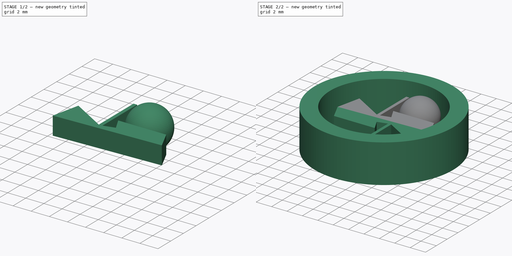
[diagram: build sequence overview — one tinted view per stage of 2, left to right]
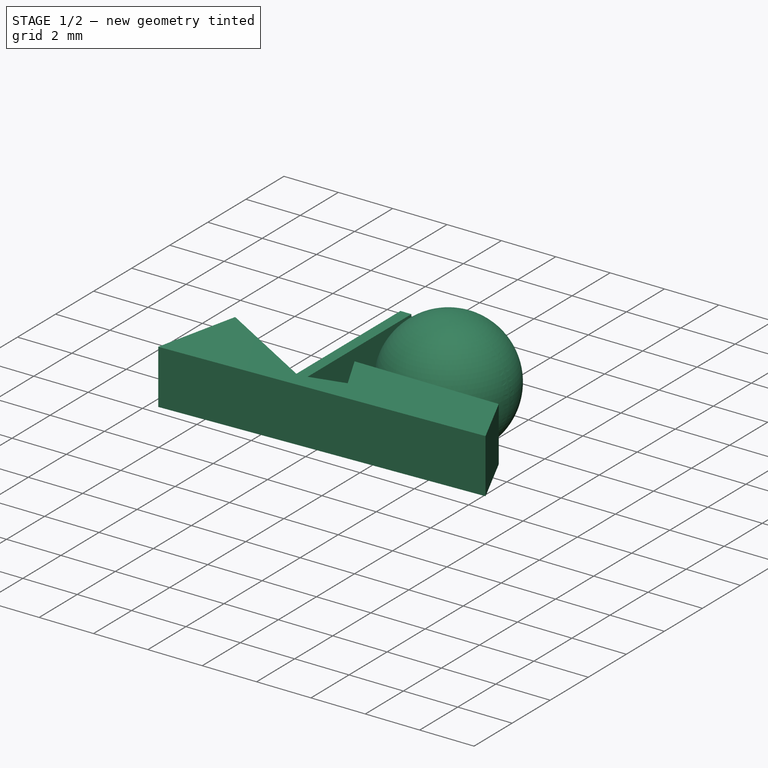
[diagram: stage 1 of 2 — iso view after this stage's code; geometry added in this stage tinted green]
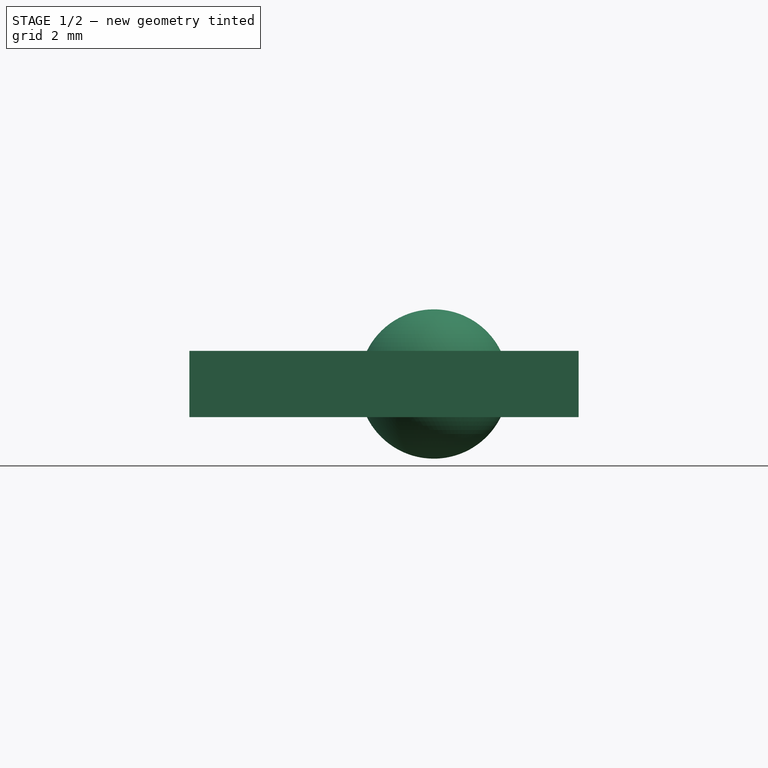
[diagram: stage 1 of 2 — front view after this stage's code; geometry added in this stage tinted green]
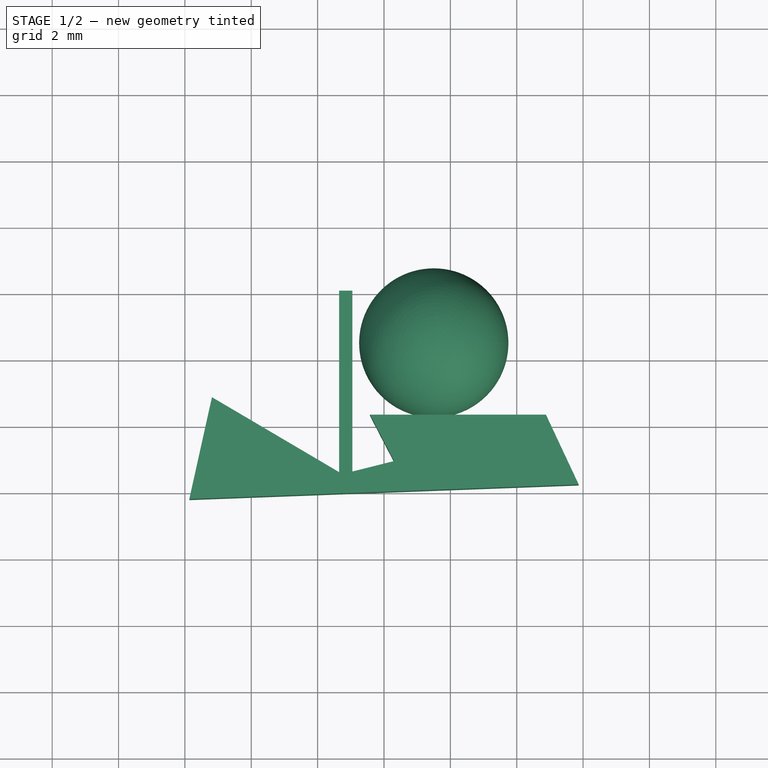
[diagram: stage 1 of 2 — top view after this stage's code; geometry added in this stage tinted green]
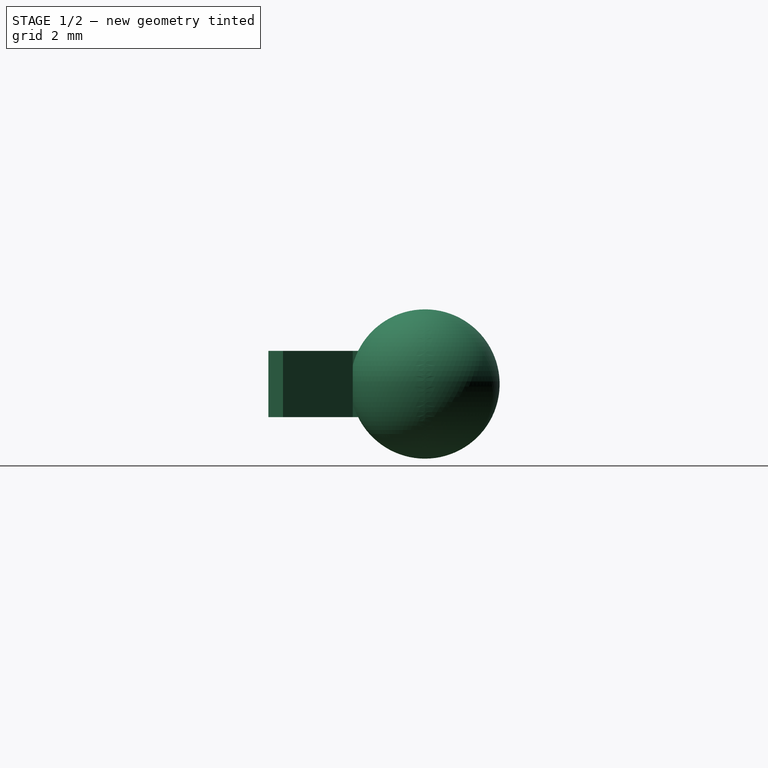
[diagram: stage 1 of 2 — right view after this stage's code; geometry added in this stage tinted green]
FCSTD DOCUMENT  (FreeCAD 0.16RUnknown)
Label: FreewheelBearing
License: CreativeCommons Attribution-NonCommercial
LicenseURL: http://creativecommons.org/licenses/by-nc/4.0/
objects: Sketcher::SketchObject×4, PartDesign::Pad×2, PartDesign::PolarPattern×1, Part::Sphere×1
note: 10 computed .brp shape members not serialized (recipe doc carries the construction recipe); baked Part::Feature solids carry a one-line shape summary decoded from their .brp

FEATURE [Sketcher::SketchObject] Sketch
  sketch-geometry (11):
    g0: Circle [constr] CenterX=0 CenterY=0 CenterZ=0 NormalX=0 NormalY=0 NormalZ=1 Radius=3
    g1: Circle [constr] CenterX=0 CenterY=4.14549 CenterZ=0 NormalX=0 NormalY=0 NormalZ=1 Radius=1.14549
    g2: ArcOfCircle CenterX=-2.36431 CenterY=-2.65825 CenterZ=0 NormalX=0 NormalY=0 NormalZ=1 Radius=8.34833 StartAngle=1.15341 EndAngle=1.67356
    g3: Circle [constr] CenterX=-1.2872 CenterY=4.4636 CenterZ=0 NormalX=0 NormalY=0 NormalZ=1 Radius=1.14549
    g4: LineSegment [constr] StartX=0 StartY=-5.17036 StartZ=0 EndX=0 EndY=0 EndZ=0
    g5: LineSegment [constr] StartX=0 StartY=0 StartZ=0 EndX=-0.969803 EndY=3.36296 EndZ=0
    g6: LineSegment [constr] StartX=-1.2872 StartY=4.4636 StartZ=0 EndX=-0.969803 EndY=3.36296 EndZ=0
    g7: ArcOfCircle CenterX=0 CenterY=4.14549 CenterZ=0 NormalX=0 NormalY=0 NormalZ=1 Radius=1.31358 StartAngle=4.55643 EndAngle=6.96509
    g8: LineSegment StartX=-0.204041 StartY=2.84785 StartZ=0 EndX=-5.84298 EndY=2.84785 EndZ=0
    g9: Circle [constr] CenterX=0 CenterY=0 CenterZ=0 NormalX=0 NormalY=0 NormalZ=1 Radius=7
    g10: ArcOfCircle CenterX=0 CenterY=0 CenterZ=0 NormalX=0 NormalY=0 NormalZ=1 Radius=6.50005 StartAngle=2.0892 EndAngle=2.68808
  constraints (25):
    c: Coincident(g0,g-1)
    c: PointOnObject(g1,g-2)
    c: Radius(g0) = 3
    c: Tangent(g0,g1)
    c: Tangent(g2,g1)
    c: Equal(g1,g3)
    c: Tangent(g3,g2)
    c: Coincident(g4,g-1)
    c: Coincident(g5,g-1)
    c: Coincident(g6,g3)
    c: Coincident(g6,g5)
    c: PointOnObject(g5,g3)
    c: Parallel(g6,g5)
    c: Distance(g5) = 3.5
    c: Angle(g4,g-1) = 1.5708
    c: Radius(g1) = 1.14549
    c: Coincident(g7,g1)
    c: Coincident(g7,g2)
    c: Coincident(g8,g7)
    c: Horizontal(g8)
    c: Coincident(g9,g-1)
    c: Radius(g9) = 7
    c: Coincident(g10,g-1)
    c: Coincident(g10,g2)
    c: Coincident(g10,g8)
FEATURE [Sketcher::SketchObject] Sketch001
  sketch-geometry (10):
    g0: Circle [constr] CenterX=0 CenterY=0 CenterZ=0 NormalX=0 NormalY=0 NormalZ=1 Radius=3
    g1: Circle [constr] CenterX=0 CenterY=4.5 CenterZ=0 NormalX=0 NormalY=0 NormalZ=1 Radius=1.5
    g2: Circle [constr] CenterX=-3.42983 CenterY=2.91312 CenterZ=0 NormalX=0 NormalY=0 NormalZ=1 Radius=1.5
    g3: Circle [constr] CenterX=0 CenterY=0 CenterZ=0 NormalX=0 NormalY=0 NormalZ=1 Radius=3.5
    g4: ArcOfCircle CenterX=-0.660867 CenterY=-1.0236 CenterZ=0 NormalX=0 NormalY=0 NormalZ=1 Radius=7.06299 StartAngle=1.22484 EndAngle=2.18378
    g5: ArcOfCircle CenterX=-3.42983 CenterY=2.91312 CenterZ=0 NormalX=0 NormalY=0 NormalZ=1 Radius=2.25 StartAngle=2.18378 EndAngle=6.07065
    g6: ArcOfCircle CenterX=0 CenterY=4.5 CenterZ=0 NormalX=0 NormalY=0 NormalZ=1 Radius=2.0649 StartAngle=5.14369 EndAngle=6.85701
    g7: LineSegment StartX=-1.23046 StartY=2.4385 StartZ=0 EndX=0.863234 EndY=2.6242 EndZ=0
    g8: LineSegment [constr] StartX=-3.42983 StartY=2.91312 StartZ=0 EndX=-4.2928 EndY=4.14002 EndZ=0
    g9: LineSegment [constr] StartX=-4.2928 StartY=4.14002 StartZ=0 EndX=-4.72428 EndY=4.75347 EndZ=0
  constraints (23):
    c: Coincident(g0,g-1)
    c: Radius(g0) = 3
    c: PointOnObject(g1,g-2)
    c: Radius(g1) = 1.5
    c: Tangent(g1,g0)
    c: Equal(g2,g1)
    c: Coincident(g3,g-1)
    c: Radius(g3) = 3.5
    c: Coincident(g5,g2)
    c: Coincident(g5,g4)
    c: Coincident(g6,g1)
    c: Coincident(g6,g4)
    c: Coincident(g7,g5)
    c: Coincident(g7,g6)
    c: Tangent(g1,g4)
    c: Tangent(g5,g4)
    c: Coincident(g8,g2)
    c: PointOnObject(g8,g2)
    c: Coincident(g8,g9)
    c: Coincident(g9,g4)
    c: Parallel(g9,g8)
    c: Distance(g9) = 0.75
    c: Tangent(g2,g0)
FEATURE [Sketcher::SketchObject] Sketch002
  sketch-geometry (13):
    g0: LineSegment StartX=-0.424066 StartY=2.32424 StartZ=0 EndX=4.88031 EndY=2.32424 EndZ=0
    g1: Circle [constr] CenterX=0 CenterY=0 CenterZ=0 NormalX=0 NormalY=0 NormalZ=1 Radius=7
    g2: Circle [constr] CenterX=1.28016 CenterY=4.57424 CenterZ=0 NormalX=0 NormalY=0 NormalZ=1 Radius=2.25
    g3: LineSegment StartX=-5.86729 StartY=-0.220209 StartZ=0 EndX=0 EndY=0 EndZ=0
    g4: LineSegment StartX=0 StartY=0 StartZ=0 EndX=5.86729 EndY=0.220209 EndZ=0
    g5: LineSegment StartX=5.86729 StartY=0.220209 StartZ=0 EndX=4.88031 EndY=2.32424 EndZ=0
    g6: LineSegment StartX=-0.952089 StartY=6.06225 StartZ=0 EndX=-1.35209 EndY=6.06225 EndZ=0
    g7: LineSegment StartX=-1.35209 StartY=6.06225 StartZ=0 EndX=-1.35209 EndY=0.590664 EndZ=0
    g8: LineSegment StartX=-0.952089 StartY=6.06225 StartZ=0 EndX=-0.952089 EndY=0.609972 EndZ=0
    g9: LineSegment StartX=-0.952089 StartY=0.609972 StartZ=0 EndX=0.302905 EndY=0.923859 EndZ=0
    g10: LineSegment StartX=0.302905 StartY=0.923859 StartZ=0 EndX=-0.424066 EndY=2.32424 EndZ=0
    g11: LineSegment StartX=-1.35209 StartY=0.590664 StartZ=0 EndX=-5.18504 EndY=2.84965 EndZ=0
    g12: LineSegment StartX=-5.18504 StartY=2.84965 StartZ=0 EndX=-5.86729 EndY=-0.220209 EndZ=0
  constraints (25):
    c: Horizontal(g0)
    c: Coincident(g1,g-1)
    c: Radius(g2) = 2.25
    c: Tangent(g2,g0)
    c: Tangent(g2,g1)
    c: Coincident(g3,g-1)
    c: Coincident(g3,g4)
    c: Coincident(g4,g5)
    c: Coincident(g5,g0)
    c: Radius(g1) = 7
    c: Horizontal(g6)
    c: Coincident(g7,g6)
    c: Vertical(g7)
    c: DistanceX(g6,g6) = 0.4
    c: Coincident(g8,g6)
    c: Vertical(g8)
    c: Coincident(g9,g8)
    c: Coincident(g10,g9)
    c: Coincident(g10,g0)
    c: Parallel(g3,g4)
    c: Equal(g4,g3)
    c: Coincident(g7,g11)
    c: Coincident(g11,g12)
    c: PointOnObject(g12,g3)
    c: Coincident(g12,g3)
FEATURE [PartDesign::Pad] Pad
  Length = 2
  Length2 = 100
  Midplane = true
  Sketch = -> Sketch002
  Type = 0
FEATURE [Part::Sphere] Sphere
  Angle1 = -90
  Angle2 = 90
  Angle3 = 360
  Placement = pos=(1.5,4.5,0) rot=(0,0,1;0rad)
  Radius = 2.25
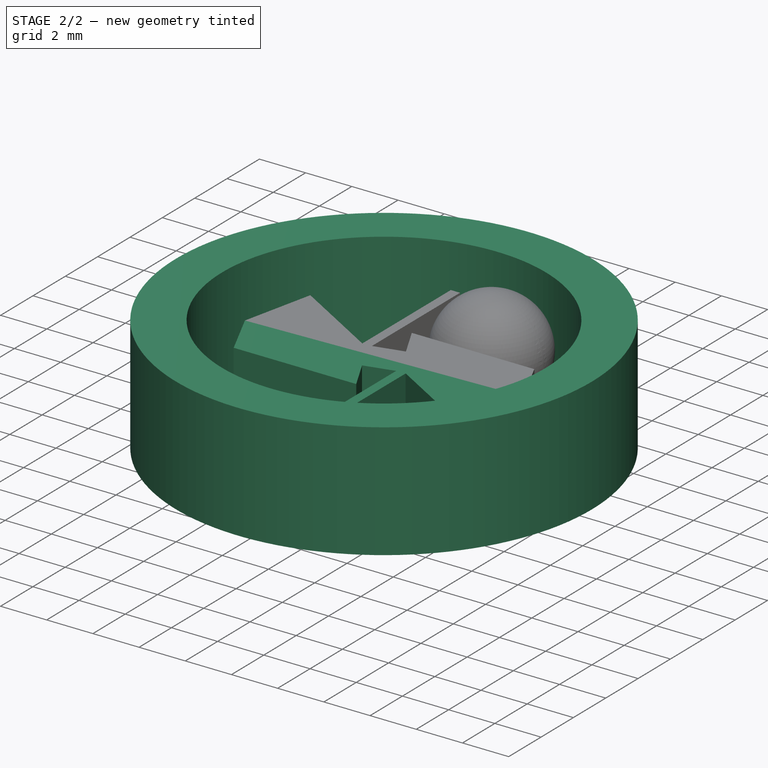
[diagram: stage 2 of 2 — iso view after this stage's code; geometry added in this stage tinted green]
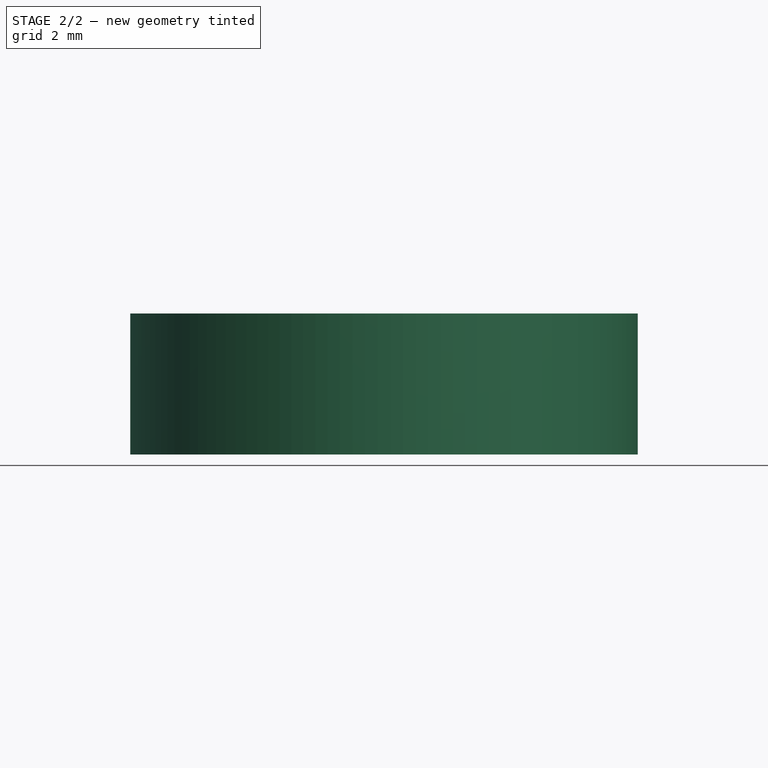
[diagram: stage 2 of 2 — front view after this stage's code; geometry added in this stage tinted green]
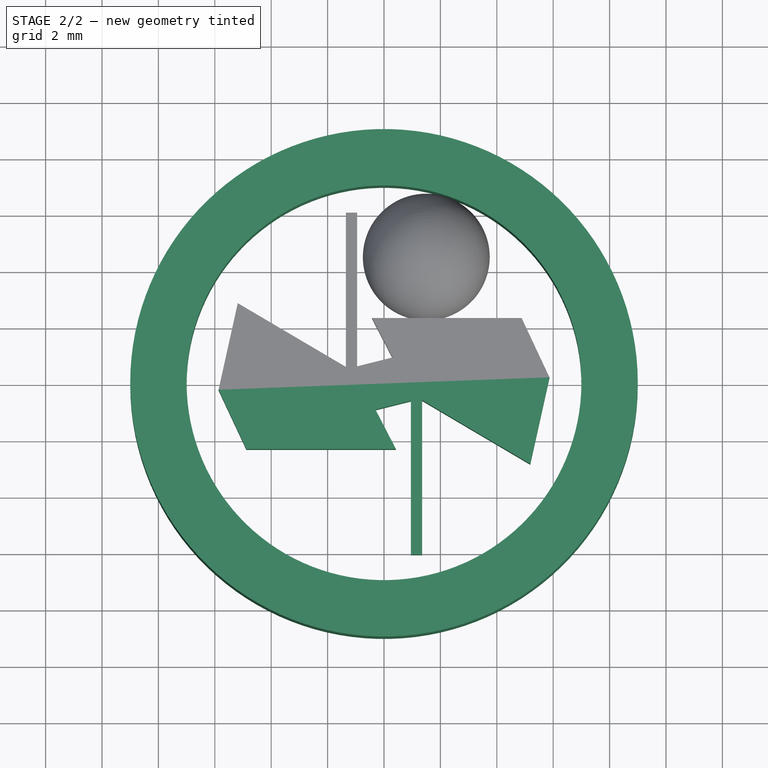
[diagram: stage 2 of 2 — top view after this stage's code; geometry added in this stage tinted green]
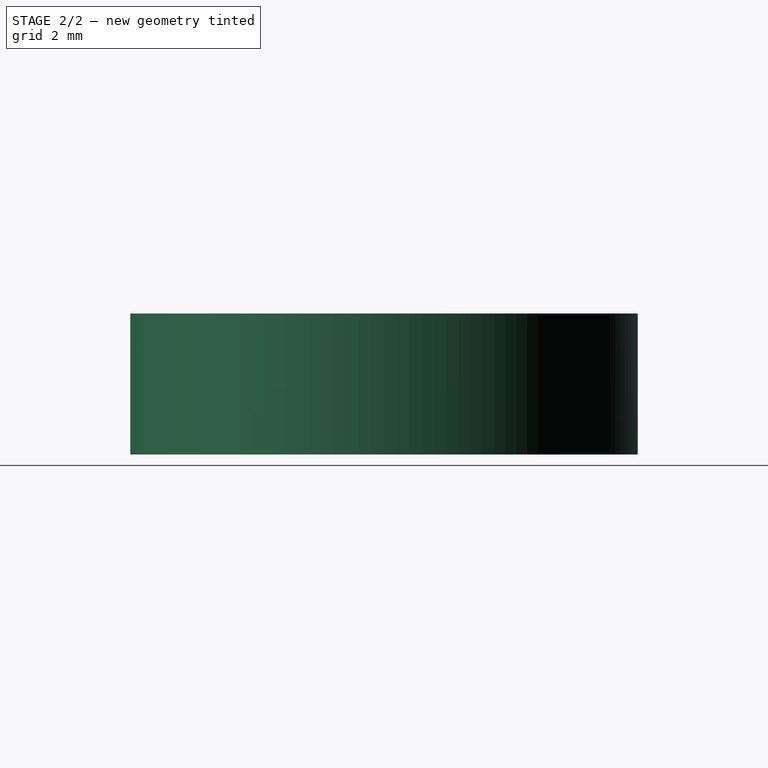
[diagram: stage 2 of 2 — right view after this stage's code; geometry added in this stage tinted green]
FEATURE [Sketcher::SketchObject] Sketch003
  sketch-geometry (2):
    g0: Circle CenterX=0 CenterY=0 CenterZ=0 NormalX=0 NormalY=0 NormalZ=1 Radius=7
    g1: Circle CenterX=0 CenterY=0 CenterZ=0 NormalX=0 NormalY=0 NormalZ=1 Radius=9
  constraints (4):
    c: Coincident(g0,g-1)
    c: Radius(g0) = 7
    c: Coincident(g1,g-1)
    c: Radius(g1) = 9
FEATURE [PartDesign::Pad] Pad001
  Length = 5
  Length2 = 100
  Midplane = true
  Sketch = -> Sketch003
  Type = 0
FEATURE [PartDesign::PolarPattern] PolarPattern
  Angle = 360
  Axis = -> Sketch002 [N_Axis]
  Occurrences = 2
  Originals = -> [Pad]
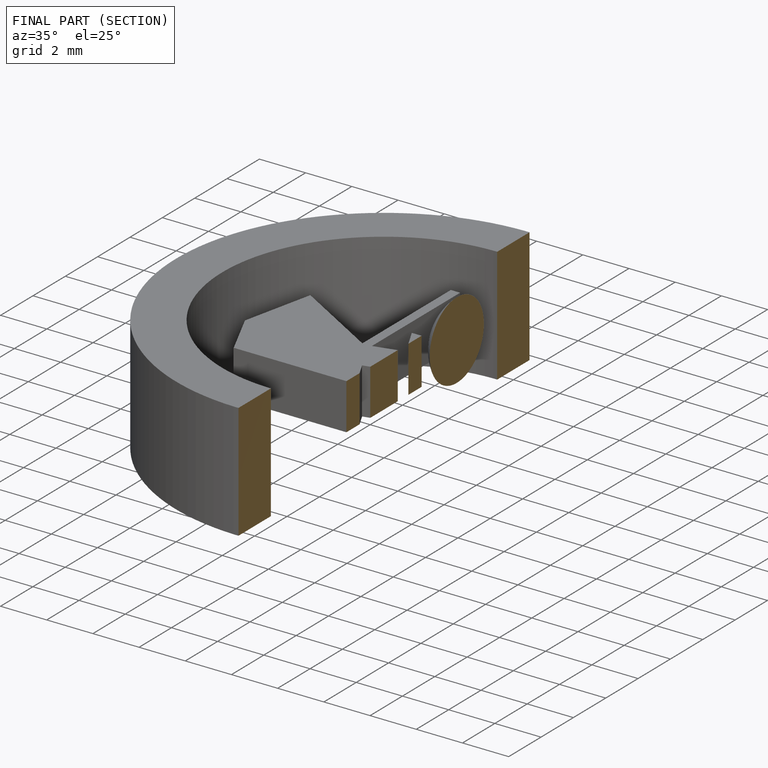
[diagram: finished part — half-section view (interior)]
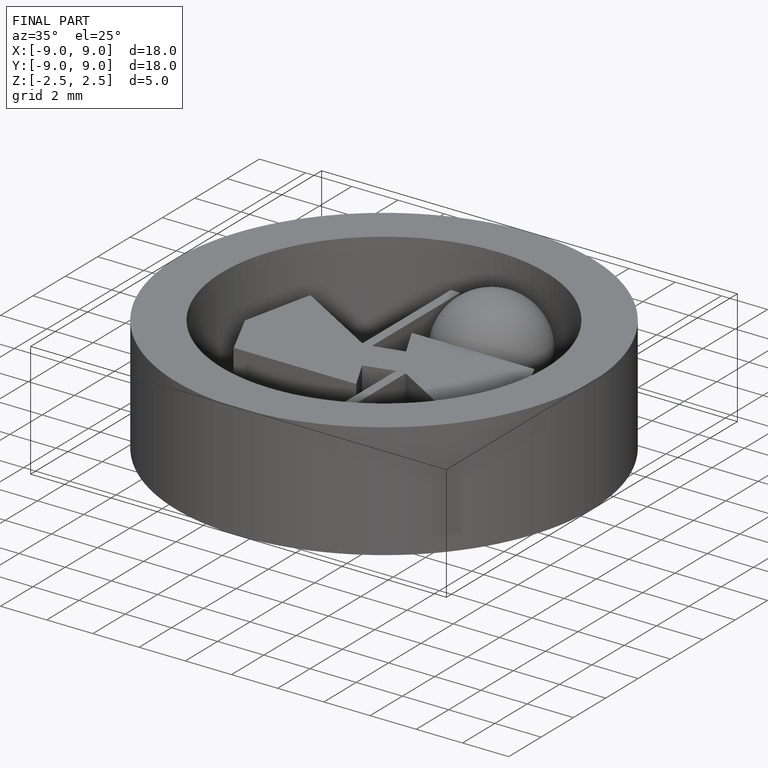
[diagram: finished part — iso view with bounding-box wireframe]
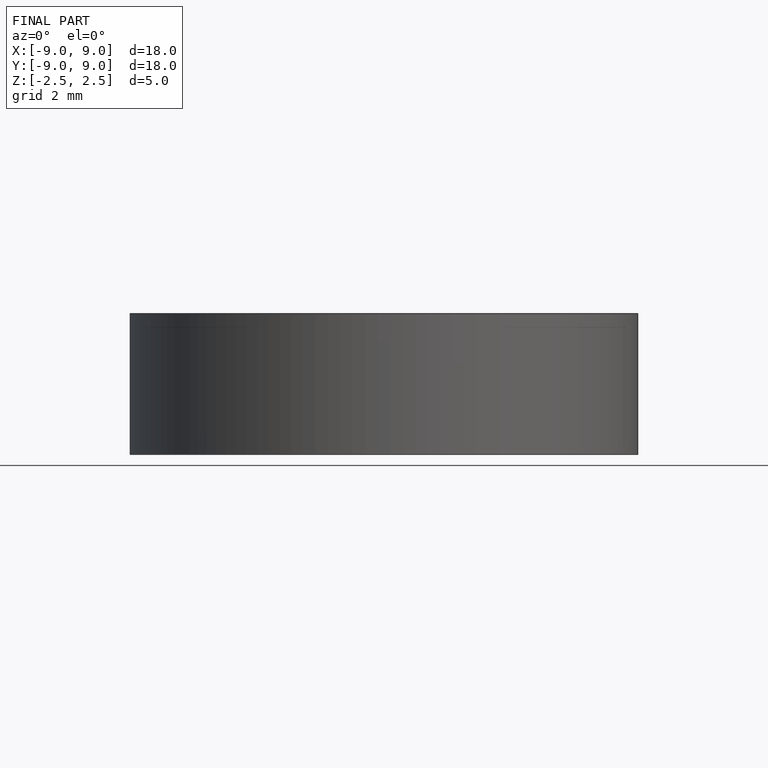
[diagram: finished part — front view with bounding-box wireframe]
